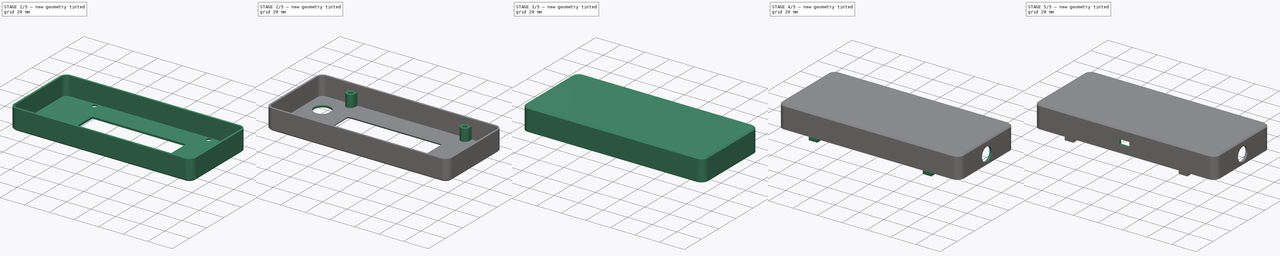
[diagram: build sequence overview — one tinted view per stage of 5, left to right]
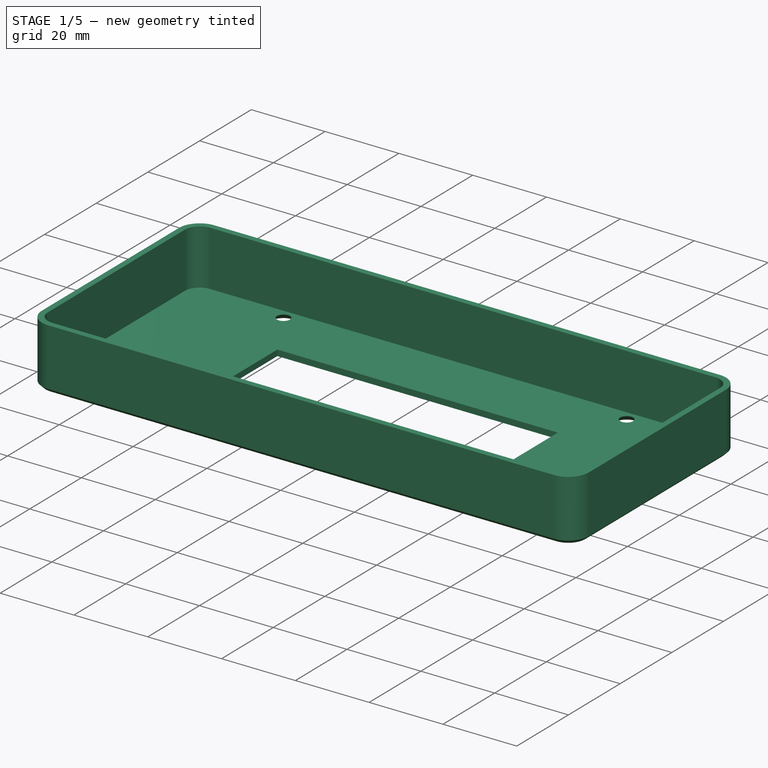
[diagram: stage 1 of 5 — iso view after this stage's code; geometry added in this stage tinted green]
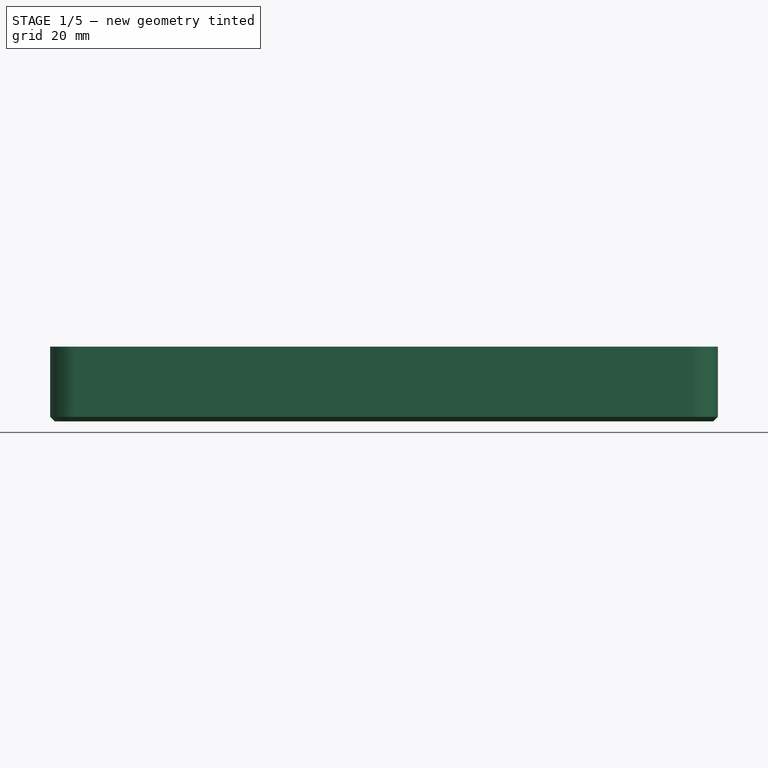
[diagram: stage 1 of 5 — front view after this stage's code; geometry added in this stage tinted green]
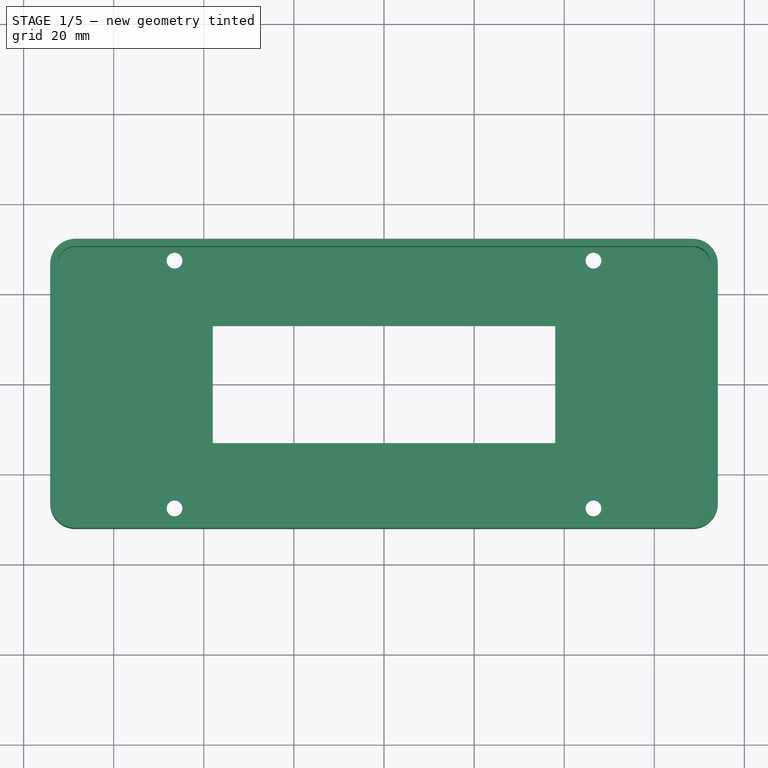
[diagram: stage 1 of 5 — top view after this stage's code; geometry added in this stage tinted green]
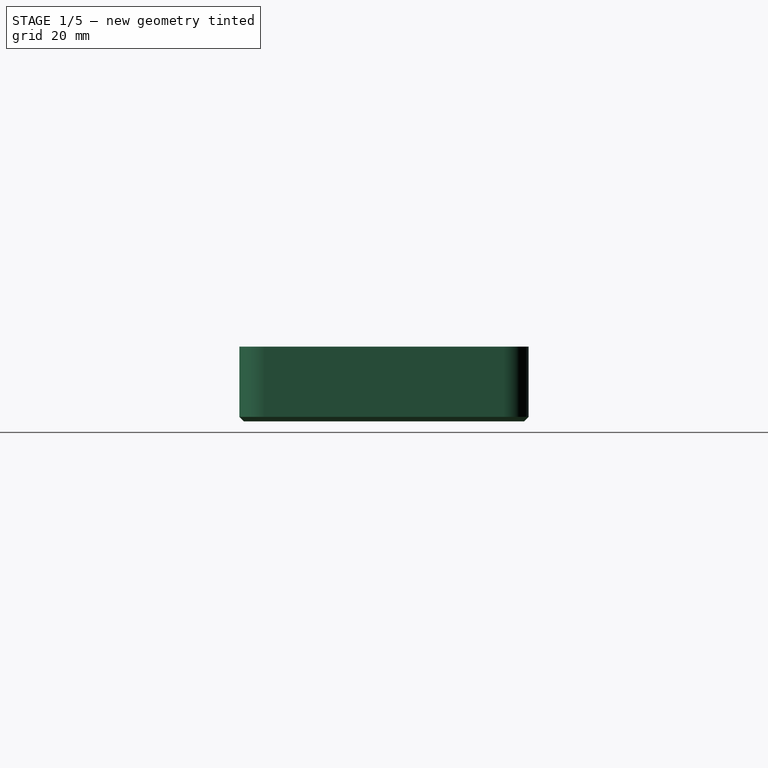
[diagram: stage 1 of 5 — right view after this stage's code; geometry added in this stage tinted green]
FCSTD DOCUMENT  (FreeCAD 1.0R39285 (Git))
Label: CW_keyer
License: All rights reserved
LicenseURL: https://en.wikipedia.org/wiki/All_rights_reserved
objects: Sketcher::SketchObject×16, PartDesign::Pocket×10, PartDesign::Pad×8, PartDesign::Chamfer×5, PartDesign::SubShapeBinder×3, PartDesign::Fillet×2, PartDesign::Thickness×2, PartDesign::Mirrored×2, Part::Part2DObjectPython×2, PartDesign::Body×2, PartDesign::Plane×1
note: 125 computed .brp shape members not serialized (recipe doc carries the construction recipe); baked Part::Feature solids carry a one-line shape summary decoded from their .brp

FEATURE [Sketcher::SketchObject] Sketch
  ArcFitTolerance = 1e-06
  AttachmentSupport = -> [XY_Plane]
  FullyConstrained = true
  MakeInternals = false
  MapMode = 5
  sketch-geometry (5):
    g0: LineSegment StartX=-72.5 StartY=-30.5 StartZ=0 EndX=72.5 EndY=-30.5 EndZ=0
    g1: LineSegment StartX=72.5 StartY=-30.5 StartZ=0 EndX=72.5 EndY=30.5 EndZ=0
    g2: LineSegment StartX=72.5 StartY=30.5 StartZ=0 EndX=-72.5 EndY=30.5 EndZ=0
    g3: LineSegment StartX=-72.5 StartY=30.5 StartZ=0 EndX=-72.5 EndY=-30.5 EndZ=0
    g4: GeomPoint [constr] X=0 Y=0 Z=0
  constraints (12):
    c: Coincident(g0,g1)
    c: Coincident(g1,g2)
    c: Coincident(g2,g3)
    c: Coincident(g3,g0)
    c: Horizontal(g0)
    c: Horizontal(g2)
    c: Vertical(g1)
    c: Vertical(g3)
    c: Symmetric(g2,g0,g4)
    c: Distance(g1,g3) = 145
    c: Distance(g0,g2) = 61
    c: Coincident(g4,g-1)
FEATURE [PartDesign::Pad] Pad
  Direction = (0,0,1)
  Length = 15
  Length2 = 10
  Profile = -> Sketch
  ReferenceAxis = -> Sketch [N_Axis]
  Refine = true
  Suppressed = false
  Type = 0
FEATURE [PartDesign::Fillet] Fillet
  Base = -> Pad [Edge2,Edge1,Edge5,Edge8]
  BaseFeature = -> Pad
  Radius = 4
  Refine = true
  SupportTransform = false
  Suppressed = false
  UseAllEdges = false
FEATURE [PartDesign::Thickness] Thickness
  Base = -> Fillet [Face5]
  BaseFeature = -> Fillet
  Intersection = true
  Join = 1
  Mode = 0
  Refine = true
  SupportTransform = false
  Suppressed = false
  Value = 1.6
FEATURE [PartDesign::Chamfer] Chamfer
  Angle = 45
  Base = -> Thickness [Edge37]
  BaseFeature = -> Thickness
  ChamferType = 0
  FlipDirection = false
  Refine = true
  Size = 1
  Size2 = 1
  SupportTransform = false
  Suppressed = false
  UseAllEdges = false
FEATURE [Sketcher::SketchObject] Sketch001
  ArcFitTolerance = 1e-06
  AttachmentSupport = -> [Chamfer]
  FullyConstrained = true
  MakeInternals = false
  MapMode = 5
  sketch-geometry (11):
    g0: LineSegment StartX=-38 StartY=-13 StartZ=0 EndX=38 EndY=-13 EndZ=0
    g1: LineSegment StartX=38 StartY=-13 StartZ=0 EndX=38 EndY=13 EndZ=0
    g2: LineSegment StartX=38 StartY=13 StartZ=0 EndX=-38 EndY=13 EndZ=0
    g3: LineSegment StartX=-38 StartY=13 StartZ=0 EndX=-38 EndY=-13 EndZ=0
    g4: GeomPoint [constr] X=0 Y=0 Z=0
    g5: Circle CenterX=-46.5 CenterY=27.5 CenterZ=0 NormalX=0 NormalY=0 NormalZ=1 AngleXU=0 Radius=1.75
    g6: Circle CenterX=46.5 CenterY=27.5 CenterZ=0 NormalX=0 NormalY=0 NormalZ=1 AngleXU=0 Radius=1.75
    g7: Circle CenterX=-46.5 CenterY=-27.5 CenterZ=0 NormalX=0 NormalY=0 NormalZ=1 AngleXU=0 Radius=1.75
    g8: Circle CenterX=46.5 CenterY=-27.5 CenterZ=0 NormalX=0 NormalY=0 NormalZ=1 AngleXU=0 Radius=1.75
    g9: LineSegment [constr] StartX=-46.5 StartY=27.5 StartZ=0 EndX=46.5 EndY=27.5 EndZ=0
    g10: LineSegment [constr] StartX=-46.5 StartY=27.5 StartZ=0 EndX=-46.5 EndY=-27.5 EndZ=0
  constraints (26):
    c: Coincident(g0,g1)
    c: Coincident(g1,g2)
    c: Coincident(g2,g3)
    c: Coincident(g3,g0)
    c: Horizontal(g0)
    c: Horizontal(g2)
    c: Vertical(g1)
    c: Vertical(g3)
    c: Symmetric(g2,g0,g4)
    c: Distance(g1,g3) = 76
    c: Distance(g0,g2) = 26
    c: Coincident(g4,g-1)
    c: Coincident(g9,g5)
    c: Coincident(g9,g6)
    c: Coincident(g10,g5)
    c: Coincident(g10,g7)
    c: Equal(g5,g6)
    c: Equal(g6,g7)
    c: Equal(g7,g8)
    c: Diameter(g6) = 3.5
    c: Symmetric(g5,g6,g-2)
    c: Symmetric(g5,g7,g-1)
    c: DistanceX(g9,g9) = 93
    c: DistanceY(g10,g10) = 55
    c: Horizontal(g8,g7)
    c: Vertical(g8,g6)
FEATURE [PartDesign::Pocket] Pocket
  BaseFeature = -> Chamfer
  Direction = (0,0,-1)
  Length = 5
  Length2 = 5
  Profile = -> Sketch001
  ReferenceAxis = -> Sketch001 [N_Axis]
  Refine = true
  Suppressed = false
  Type = 2
FEATURE [PartDesign::Chamfer] Chamfer001
  Angle = 45
  Base = -> Pocket [Edge39,Edge44,Edge38,Edge37]
  BaseFeature = -> Pocket
  ChamferType = 0
  FlipDirection = false
  Refine = true
  Size = 1.5
  Size2 = 1
  SupportTransform = false
  Suppressed = false
  UseAllEdges = false
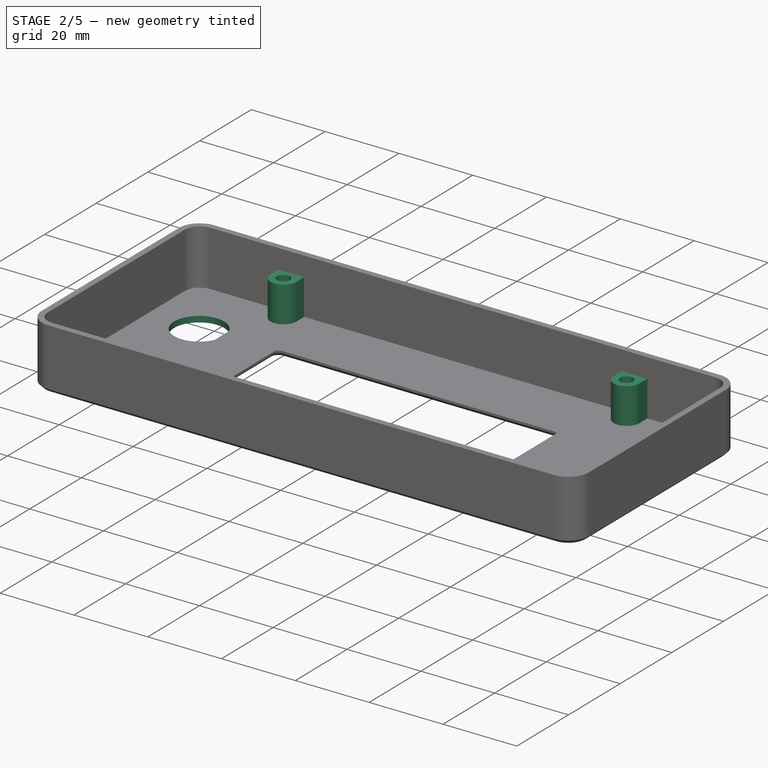
[diagram: stage 2 of 5 — iso view after this stage's code; geometry added in this stage tinted green]
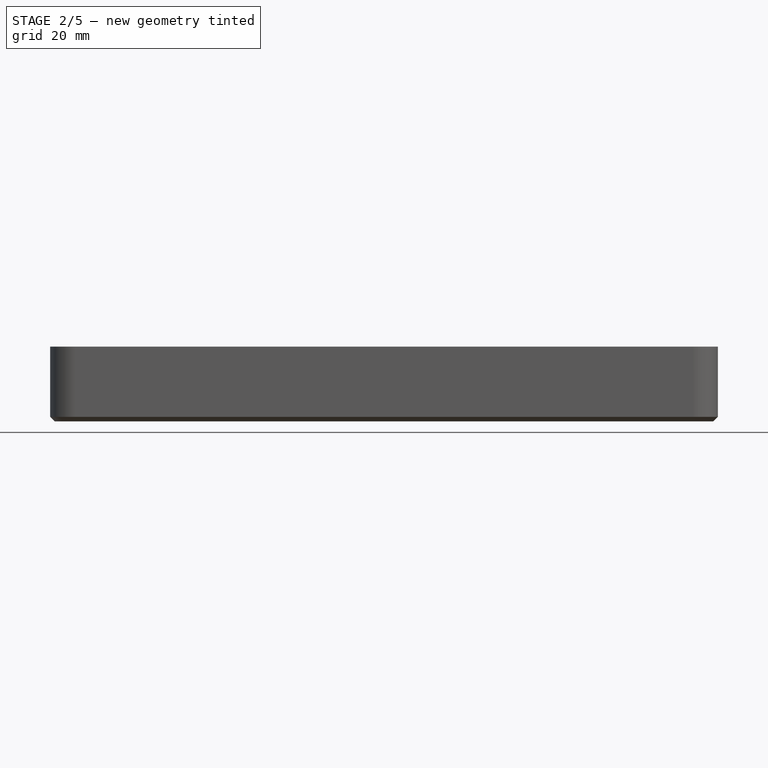
[diagram: stage 2 of 5 — front view after this stage's code; geometry added in this stage tinted green]
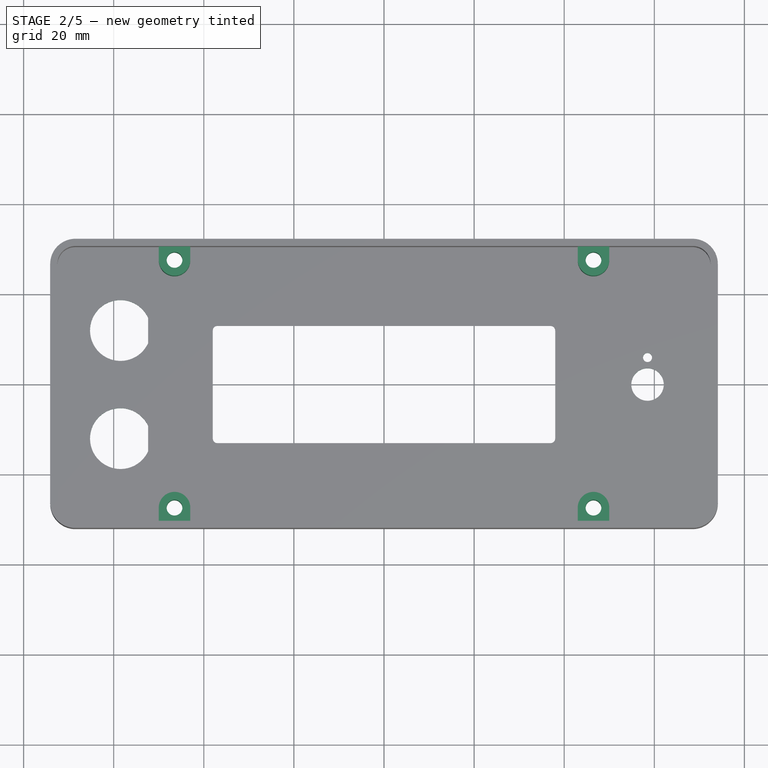
[diagram: stage 2 of 5 — top view after this stage's code; geometry added in this stage tinted green]
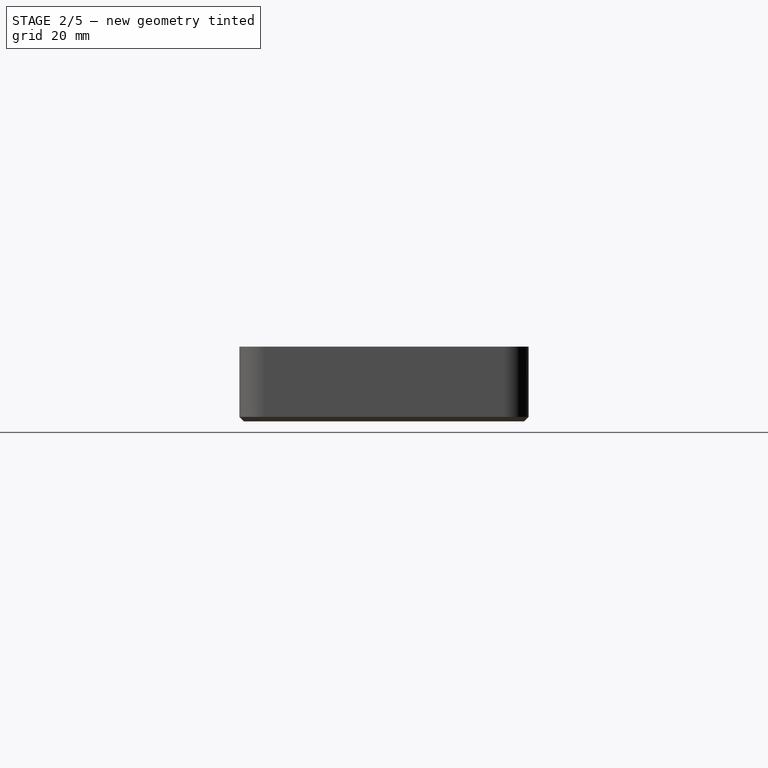
[diagram: stage 2 of 5 — right view after this stage's code; geometry added in this stage tinted green]
FEATURE [PartDesign::Fillet] Fillet001
  Base = -> Chamfer001 [Edge39,Edge41,Edge37,Edge36]
  BaseFeature = -> Chamfer001
  Radius = 1
  Refine = true
  SupportTransform = false
  Suppressed = false
  UseAllEdges = false
FEATURE [PartDesign::Chamfer] Chamfer002
  Angle = 45
  Base = -> Fillet001 [Edge6]
  BaseFeature = -> Fillet001
  ChamferType = 0
  FlipDirection = false
  Refine = true
  Size = 1
  Size2 = 1
  SupportTransform = false
  Suppressed = false
  UseAllEdges = false
FEATURE [Sketcher::SketchObject] Sketch002
  ArcFitTolerance = 1e-06
  AttachmentSupport = -> [Chamfer002]
  ExternalGeometry = -> [Chamfer002]
  FullyConstrained = true
  MakeInternals = false
  MapMode = 5
  sketch-geometry (20):
    g0: Circle CenterX=-46.5 CenterY=27.5 CenterZ=0 NormalX=0 NormalY=0 NormalZ=1 AngleXU=0 Radius=1.75
    g1: Circle CenterX=46.5 CenterY=27.5 CenterZ=0 NormalX=0 NormalY=0 NormalZ=1 AngleXU=0 Radius=1.75
    g2: Circle CenterX=46.5 CenterY=-27.5 CenterZ=0 NormalX=0 NormalY=0 NormalZ=1 AngleXU=0 Radius=1.75
    g3: Circle CenterX=-46.5 CenterY=-27.5 CenterZ=0 NormalX=0 NormalY=0 NormalZ=1 AngleXU=0 Radius=1.75
    g4: ArcOfCircle CenterX=-46.5 CenterY=27.5 CenterZ=0 NormalX=0 NormalY=0 NormalZ=1 AngleXU=0 Radius=3.5 StartAngle=3.14159 EndAngle=6.28319
    g5: ArcOfCircle CenterX=46.5 CenterY=27.5 CenterZ=0 NormalX=0 NormalY=0 NormalZ=1 AngleXU=0 Radius=3.5 StartAngle=3.14159 EndAngle=6.28319
    g6: ArcOfCircle CenterX=46.5 CenterY=-27.5 CenterZ=0 NormalX=0 NormalY=0 NormalZ=1 AngleXU=0 Radius=3.5 StartAngle=0 EndAngle=3.14159
    g7: ArcOfCircle CenterX=-46.5 CenterY=-27.5 CenterZ=0 NormalX=0 NormalY=0 NormalZ=1 AngleXU=0 Radius=3.5 StartAngle=0 EndAngle=3.14159
    g8: LineSegment StartX=-43 StartY=31 StartZ=0 EndX=-43 EndY=27.5 EndZ=0
    g9: LineSegment StartX=-50 StartY=31 StartZ=0 EndX=-50 EndY=27.5 EndZ=0
    g10: LineSegment StartX=-50 StartY=31 StartZ=0 EndX=-43 EndY=31 EndZ=0
    g11: LineSegment StartX=-50 StartY=-27.5 StartZ=0 EndX=-50 EndY=-31 EndZ=0
    g12: LineSegment StartX=-50 StartY=-31 StartZ=0 EndX=-43 EndY=-31 EndZ=0
    g13: LineSegment StartX=-43 StartY=-31 StartZ=0 EndX=-43 EndY=-27.5 EndZ=0
    g14: LineSegment StartX=43 StartY=-27.5 StartZ=0 EndX=43 EndY=-31 EndZ=0
    g15: LineSegment StartX=43 StartY=-31 StartZ=0 EndX=50 EndY=-31 EndZ=0
    g16: LineSegment StartX=50 StartY=-31 StartZ=0 EndX=50 EndY=-27.5 EndZ=0
    g17: LineSegment StartX=43 StartY=27.5 StartZ=0 EndX=43 EndY=31 EndZ=0
    g18: LineSegment StartX=43 StartY=31 StartZ=0 EndX=50 EndY=31 EndZ=0
    g19: LineSegment StartX=50 StartY=31 StartZ=0 EndX=50 EndY=27.5 EndZ=0
  constraints (48):
    c: Coincident(g0,g-3)
    c: Equal(g0,g-3)
    c: Coincident(g1,g-5)
    c: Equal(g1,g-5)
    c: Coincident(g2,g-6)
    c: Equal(g2,g-6)
    c: Coincident(g3,g-4)
    c: Equal(g3,g-4)
    c: Diameter(g4) = 7
    c: Coincident(g4,g0)
    c: Coincident(g5,g1)
    c: Coincident(g6,g2)
    c: Coincident(g7,g3)
    c: Equal(g4,g5)
    c: Equal(g5,g6)
    c: Equal(g6,g7)
    c: Vertical(g9)
    c: Coincident(g10,g9)
    c: Coincident(g10,g8)
    c: Horizontal(g10)
    c: Vertical(g8)
    c: Coincident(g11,g12)
    c: Coincident(g12,g13)
    c: Coincident(g14,g15)
    c: Coincident(g15,g16)
    c: Horizontal(g15)
    c: Vertical(g14)
    c: Vertical(g16)
    c: Vertical(g11)
    c: Horizontal(g12)
    c: Vertical(g13)
    c: Coincident(g17,g18)
    c: Coincident(g18,g19)
    c: Vertical(g17)
    c: Horizontal(g18)
    c: Vertical(g19)
    c: Tangent(g4,g8) = 1.5708
    c: Tangent(g4,g9) = -1.5708
    c: Tangent(g5,g19) = 1.5708
    c: Tangent(g5,g17) = 1.5708
    c: Tangent(g6,g16) = -1.5708
    c: Tangent(g6,g14) = -1.5708
    c: Tangent(g7,g11) = -1.5708
    c: Tangent(g7,g13) = -1.5708
    c: DistanceY(g9,g9) = 3.5
    c: Equal(g13,g14)
    c: Equal(g14,g17)
    c: Equal(g17,g9)
FEATURE [PartDesign::Pad] Pad001
  BaseFeature = -> Chamfer002
  Direction = (0,0,1)
  Length = 9.7
  Length2 = 10
  Profile = -> Sketch002
  ReferenceAxis = -> Sketch002 [N_Axis]
  Refine = true
  Suppressed = false
  Type = 0
FEATURE [Sketcher::SketchObject] Sketch007
  ArcFitTolerance = 1e-06
  AttachmentSupport = -> [Pad001]
  ExternalGeometry = -> [Pad001]
  FullyConstrained = true
  MakeInternals = false
  MapMode = 5
  Placement = pos=(0,0,-1.6) rot=(1,0,0;3.14159rad)
  sketch-geometry (15):
    g0: LineSegment [constr] StartX=46.5 StartY=27.5 StartZ=0 EndX=46.5 EndY=-27.5 EndZ=0
    g1: LineSegment [constr] StartX=-46.5 StartY=27.5 StartZ=0 EndX=-46.5 EndY=-27.5 EndZ=0
    g2: Circle CenterX=58.5 CenterY=0 CenterZ=0 NormalX=0 NormalY=0 NormalZ=1 AngleXU=0 Radius=3.6
    g3: ArcOfCircle CenterX=-58.5 CenterY=12 CenterZ=0 NormalX=0 NormalY=0 NormalZ=1 AngleXU=0 Radius=6.75 StartAngle=0.424824 EndAngle=5.85836
    g4: ArcOfCircle CenterX=-58.5 CenterY=-12 CenterZ=0 NormalX=0 NormalY=0 NormalZ=1 AngleXU=0 Radius=6.75 StartAngle=0.424824 EndAngle=5.85836
    g5: Circle CenterX=58.5 CenterY=-6 CenterZ=0 NormalX=0 NormalY=0 NormalZ=1 AngleXU=0 Radius=1
    g6: LineSegment [constr] StartX=-49.5 StartY=-30 StartZ=0 EndX=49.5 EndY=-30 EndZ=0
    g7: LineSegment [constr] StartX=49.5 StartY=-30 StartZ=0 EndX=49.5 EndY=30 EndZ=0
    g8: LineSegment [constr] StartX=49.5 StartY=30 StartZ=0 EndX=-49.5 EndY=30 EndZ=0
    g9: LineSegment [constr] StartX=-49.5 StartY=30 StartZ=0 EndX=-49.5 EndY=-30 EndZ=0
    g10: GeomPoint [constr] X=0 Y=0 Z=0
    g11: LineSegment StartX=-52.35 StartY=14.7821 StartZ=0 EndX=-52.35 EndY=9.21791 EndZ=0
    g12: LineSegment StartX=-52.35 StartY=-9.21791 StartZ=0 EndX=-52.35 EndY=-14.7821 EndZ=0
    g13: GeomPoint [constr] X=-52.35 Y=12 Z=0
    g14: GeomPoint [constr] X=-65.25 Y=12 Z=0
  constraints (38):
    c: Coincident(g0,g-3)
    c: Coincident(g0,g-4)
    c: Coincident(g1,g-5)
    c: Coincident(g1,g-6)
    c: PointOnObject(g2,g-1)
    c: Symmetric(g3,g4,g-1)
    c: Distance(g3,g1) = 12
    c: Equal(g3,g4)
    c: Diameter(g3) = 13.5
    c: Distance(g3,g-1) = 12
    c: Diameter(g2) = 7.2
    c: Distance(g2,g0) = 12
    c: Vertical(g5,g2)
    c: DistanceY(g5,g2) = 6
    c: Diameter(g5) = 2
    c: Coincident(g6,g7)
    c: Coincident(g7,g8)
    c: Coincident(g8,g9)
    c: Coincident(g9,g6)
    c: Horizontal(g6)
    c: Horizontal(g8)
    c: Vertical(g7)
    c: Vertical(g9)
    c: Symmetric(g8,g6,g10)
    c: Coincident(g10,g-1)
    c: DistanceX(g8,g8) = 99
    c: DistanceY(g7,g7) = 60
    c: Vertical(g11)
    c: Coincident(g4,g12)
    c: Coincident(g4,g12)
    c: Coincident(g3,g11)
    c: Coincident(g3,g11)
    c: Symmetric(g11,g11,g13)
    c: PointOnObject(g14,g3)
    c: Horizontal(g13,g14)
    c: DistanceX(g14,g13) = 12.9
    c: Equal(g11,g12)
    c: Vertical(g12)
FEATURE [PartDesign::Pocket] Pocket003  label="ovladani"
  BaseFeature = -> Pad001
  Direction = (0,0,1)
  Length = 5
  Length2 = 5
  Profile = -> Sketch007
  ReferenceAxis = -> Sketch007 [N_Axis]
  Refine = true
  Suppressed = false
  Type = 0
FEATURE [Sketcher::SketchObject] Sketch011
  ArcFitTolerance = 1e-06
  AttachmentSupport = -> [Pocket003]
  ExternalGeometry = -> [Pocket003]
  FullyConstrained = true
  MakeInternals = false
  MapMode = 5
  Placement = pos=(0,0,-1.6) rot=(1,0,0;3.14159rad)
  sketch-geometry (25):
    g0: LineSegment StartX=-46.1906 StartY=-6 StartZ=0 EndX=-49.6547 EndY=-4 EndZ=0
    g1: LineSegment StartX=-49.6547 StartY=-4 StartZ=0 EndX=-49.6547 EndY=-8 EndZ=0
    g2: LineSegment StartX=-49.6547 StartY=-8 StartZ=0 EndX=-46.1906 EndY=-6 EndZ=0
    g3: Circle [constr] CenterX=-48.5 CenterY=-6 CenterZ=0 NormalX=0 NormalY=0 NormalZ=1 AngleXU=0 Radius=2.3094
    g4: LineSegment StartX=-44.1906 StartY=-10 StartZ=0 EndX=-44.1906 EndY=-14 EndZ=0
    g5: LineSegment StartX=-44.1906 StartY=-14 StartZ=0 EndX=-40.1906 EndY=-14 EndZ=0
    g6: LineSegment StartX=-40.1906 StartY=-14 StartZ=0 EndX=-40.1906 EndY=-10 EndZ=0
    g7: LineSegment StartX=-40.1906 StartY=-10 StartZ=0 EndX=-44.1906 EndY=-10 EndZ=0
    g8: LineSegment [constr] StartX=-58.5 StartY=12 StartZ=0 EndX=-44.2373 EndY=12 EndZ=0
    g9: LineSegment StartX=-48.6213 StartY=14.1213 StartZ=0 EndX=-46.5 EndY=12 EndZ=0
    g10: LineSegment StartX=-46.5 StartY=12 StartZ=0 EndX=-48.6213 EndY=9.87868 EndZ=0
    g11: LineSegment StartX=-48.6213 StartY=9.87868 StartZ=0 EndX=-47.4899 EndY=8.74731 EndZ=0
    g12: LineSegment StartX=-47.4899 StartY=8.74731 StartZ=0 EndX=-45.3686 EndY=10.8686 EndZ=0
    g13: LineSegment StartX=-45.3686 StartY=10.8686 StartZ=0 EndX=-43.2473 EndY=8.74731 EndZ=0
    g14: LineSegment StartX=-43.2473 StartY=8.74731 StartZ=0 EndX=-42.1159 EndY=9.87868 EndZ=0
    g15: LineSegment StartX=-42.1159 StartY=9.87868 StartZ=0 EndX=-44.2373 EndY=12 EndZ=0
    g16: LineSegment StartX=-44.2373 StartY=12 StartZ=0 EndX=-42.1159 EndY=14.1213 EndZ=0
    g17: LineSegment StartX=-42.1159 StartY=14.1213 StartZ=0 EndX=-43.2473 EndY=15.2527 EndZ=0
    g18: LineSegment StartX=-43.2473 StartY=15.2527 StartZ=0 EndX=-45.3686 EndY=13.1314 EndZ=0
    g19: LineSegment StartX=-45.3686 StartY=13.1314 StartZ=0 EndX=-47.4899 EndY=15.2527 EndZ=0
    g20: LineSegment StartX=-47.4899 StartY=15.2527 StartZ=0 EndX=-48.6213 EndY=14.1213 EndZ=0
    g21: LineSegment StartX=-44.1906 StartY=-5 StartZ=0 EndX=-49.9264 EndY=-13.1915 EndZ=0
    g22: LineSegment StartX=-49.9264 StartY=-13.1915 StartZ=0 EndX=-49.1072 EndY=-13.7651 EndZ=0
    g23: LineSegment StartX=-49.1072 StartY=-13.7651 StartZ=0 EndX=-43.3714 EndY=-5.57358 EndZ=0
    g24: LineSegment StartX=-43.3714 StartY=-5.57358 StartZ=0 EndX=-44.1906 EndY=-5 EndZ=0
  constraints (74):
    c: Coincident(g0,g1)
    c: Coincident(g1,g2)
    c: Coincident(g2,g0)
    c: Equal(g0,g1)
    c: Equal(g0,g2)
    c: PointOnObject(g0,g3)
    c: PointOnObject(g1,g3)
    c: PointOnObject(g2,g3)
    c: Coincident(g4,g5)
    c: Coincident(g5,g6)
    c: Coincident(g6,g7)
    c: Coincident(g7,g4)
    c: Vertical(g4)
    c: Vertical(g6)
    c: Horizontal(g5)
    c: Horizontal(g7)
    c: Vertical(g1)
    c: DistanceY(g1,g1) = 4
    c: DistanceX(g7,g7) = 4
    c: Equal(g7,g6)
    c: Coincident(g8,g-4)
    c: Horizontal(g8)
    c: Coincident(g9,g10)
    c: Coincident(g10,g11)
    c: Coincident(g11,g12)
    c: Coincident(g12,g13)
    c: Coincident(g13,g14)
    c: Coincident(g14,g15)
    c: Coincident(g15,g16)
    c: Coincident(g16,g17)
    c: Coincident(g17,g18)
    c: Coincident(g18,g19)
    c: Coincident(g19,g20)
    c: Coincident(g20,g9)
    c: Equal(g20,g14)
    c: Equal(g14,g17)
    c: Equal(g17,g11)
    c: Equal(g19,g9)
    c: Equal(g9,g18)
    c: Equal(g18,g16)
    c: Equal(g16,g15)
    c: Equal(g15,g13)
    c: Equal(g13,g12)
    c: Equal(g12,g10)
    c: Perpendicular(g10,g9)
    c: Perpendicular(g18,g19)
    c: Perpendicular(g15,g16)
    c: Perpendicular(g12,g13)
    c: Perpendicular(g9,g20)
    c: Perpendicular(g16,g17)
    c: Perpendicular(g14,g15,g14) = 1.5708
    c: Perpendicular(g11,g12)
    c: Perpendicular(g17,g18)
    c: PointOnObject(g9,g8)
    c: Distance(g20,g20) = 1.6
    c: Distance(g19,g19) = 3
    c: DistanceX(g8,g9) = 12
    c: Coincident(g8,g15)
    c: Coincident(g21,g22)
    c: Coincident(g22,g23)
    c: Coincident(g23,g24)
    c: Coincident(g24,g21)
    c: Parallel(g23,g21)
    c: Parallel(g24,g22)
    c: Perpendicular(g23,g22)
    c: Distance(g22,g22) = 1
    c: Distance(g23,g23) = 10
    c: DistanceX(g-3,g3) = 10
    c: DistanceY(g-3,g3) = 6
    c: DistanceX(g0,g21) = 2
    c: DistanceY(g4,g0) = 4
    c: DistanceX(g0,g4) = 2
    c: DistanceY(g4,g21) = 5
    c: Angle(g5,g23) = 0.959931
FEATURE [PartDesign::Pocket] Pocket006
  BaseFeature = -> Pocket003
  Direction = (0,0,1)
  Length = 0.6
  Length2 = 5
  Profile = -> Sketch011
  ReferenceAxis = -> Sketch011 [N_Axis]
  Refine = true
  Suppressed = false
  Type = 0
FEATURE [Part::Part2DObjectPython] ShapeString  # Draft 2D object (typed FeaturePython)
  AttachmentOffset = pos=(45,11,0) rot=(0,0,1;0rad)
  AttachmentSupport = -> [Pocket006]
  FontFile = <path>
  Fuse = false
  Justification = 6
  JustificationReference = 0
  KeepLeftMargin = false
  MakeFace = true
  MapMode = 5
  ObliqueAngle = 0
  Placement = pos=(45,-11,-1.6) rot=(1,0,0;3.14159rad)
  ScaleToSize = true
  Size = 6
  String = WPM
  Tracking = 0
FEATURE [PartDesign::Pocket] Pocket007
  BaseFeature = -> Pocket006
  Direction = (0,0,1)
  Length = 0.6
  Length2 = 5
  Profile = -> ShapeString
  ReferenceAxis = -> ShapeString [N_Axis]
  Refine = true
  Suppressed = false
  Type = 0
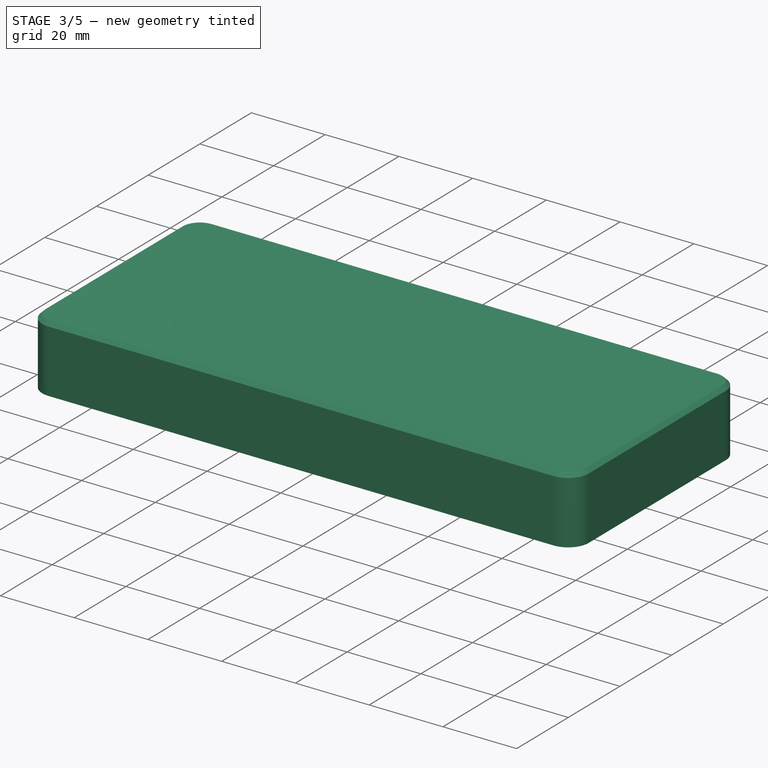
[diagram: stage 3 of 5 — iso view after this stage's code; geometry added in this stage tinted green]
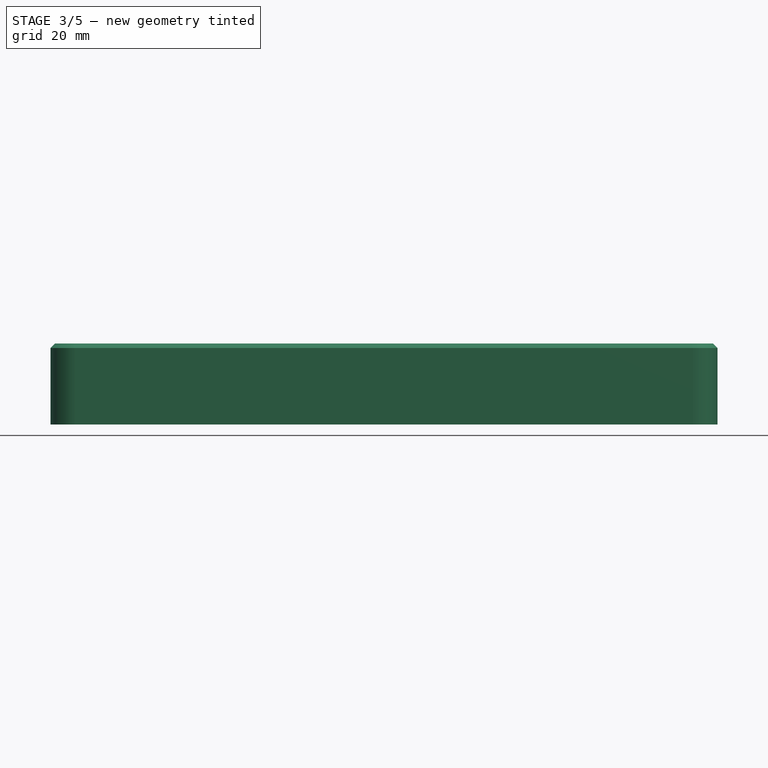
[diagram: stage 3 of 5 — front view after this stage's code; geometry added in this stage tinted green]
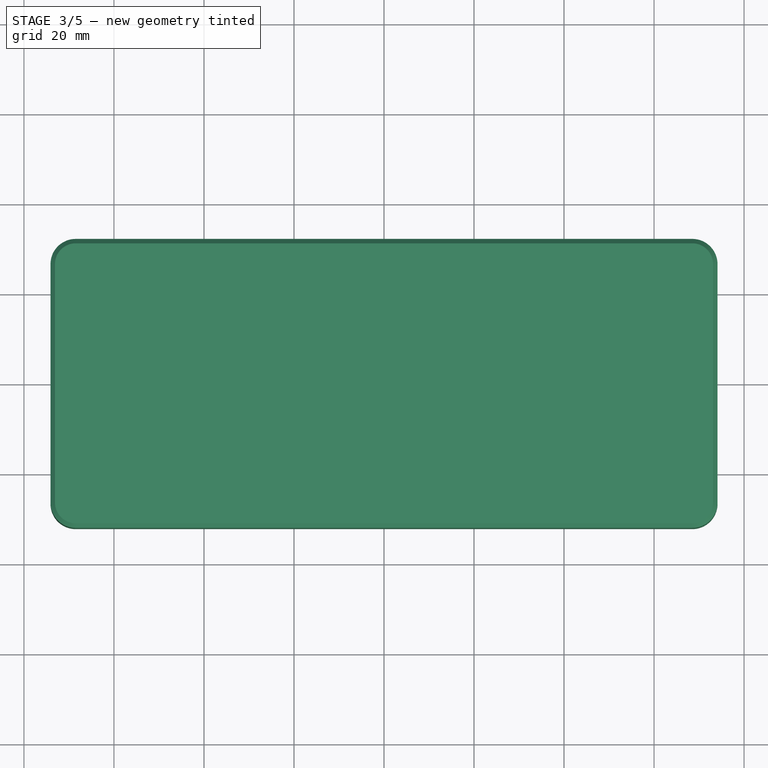
[diagram: stage 3 of 5 — top view after this stage's code; geometry added in this stage tinted green]
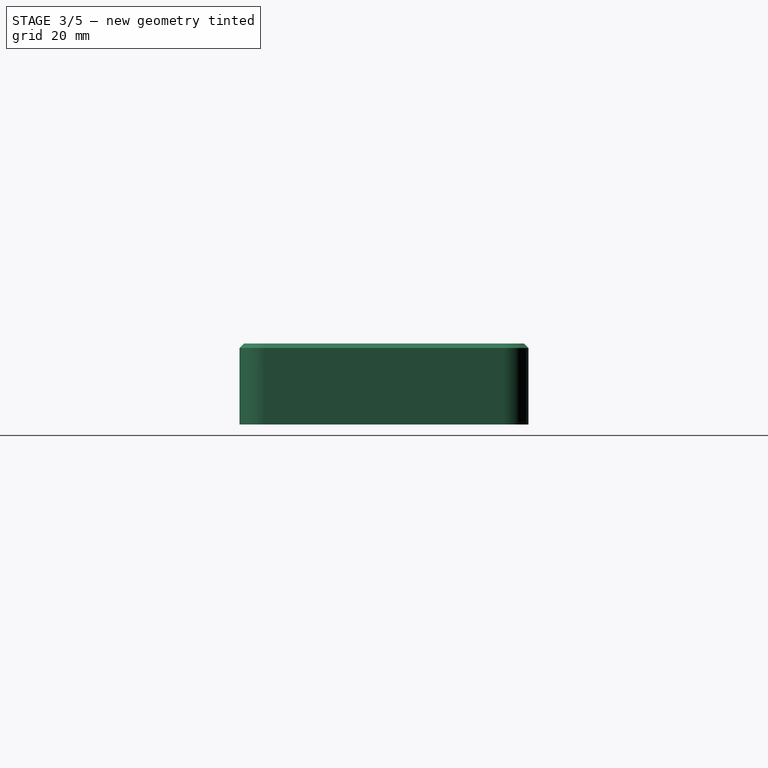
[diagram: stage 3 of 5 — right view after this stage's code; geometry added in this stage tinted green]
FEATURE [PartDesign::SubShapeBinder] Binder001
  BindCopyOnChange = 0
  BindMode = 0
  ClaimChildren = false
  Context = -> Body001 [Binder001.]
  Fuse = false
  MakeFace = true
  OffsetFill = false
  OffsetIntersection = false
  OffsetJoinType = 0
  OffsetOpenResult = false
  PartialLoad = false
  Placement = pos=(0,0,1.7) rot=(0,0,1;0rad)
  Refine = true
  Relative = true
  Support = -> [Body[Pad001.Edge166,Pad001.Vertex105,Pad001.Edge165,Pad001.Edge168,Pad001.Edge139,Pad001.Edge163,Pad001.Edge144,Pad001.Edge158]]
  _Version = 2
FEATURE [PartDesign::SubShapeBinder] Binder
  BindCopyOnChange = 0
  BindMode = 0
  ClaimChildren = false
  Context = -> Body001 [Binder.]
  Fuse = false
  MakeFace = true
  Offset = -0.2
  OffsetFill = false
  OffsetIntersection = false
  OffsetJoinType = 0
  OffsetOpenResult = false
  PartialLoad = false
  Refine = true
  Relative = true
  Support = -> [Body[Pad001.Edge120,Pad001.Edge124,Pad001.Edge122,Pad001.Edge118,Pad001.Edge119,Pad001.Edge121,Pad001.Edge123,Pad001.Edge117]]
  _Version = 2
FEATURE [PartDesign::SubShapeBinder] Binder002
  BindCopyOnChange = 0
  BindMode = 0
  ClaimChildren = false
  Context = -> Body001 [Binder002.]
  Fuse = false
  MakeFace = true
  OffsetFill = false
  OffsetIntersection = false
  OffsetJoinType = 0
  OffsetOpenResult = false
  PartialLoad = false
  Refine = true
  Relative = true
  Support = -> [Body[Pad001.Face39]]
  _Version = 2
FEATURE [Sketcher::SketchObject] Sketch003
  ArcFitTolerance = 1e-06
  AttachmentSupport = -> [Binder002]
  ExternalGeometry = -> [Binder002]
  FullyConstrained = true
  MakeInternals = false
  MapMode = 5
  Placement = pos=(0,0,15) rot=(0,0,1;0rad)
  sketch-geometry (12):
    g0: GeomPoint [constr] X=-68.5 Y=26.5 Z=0
    g1: GeomPoint [constr] X=68.5 Y=-26.5 Z=0
    g2: LineSegment StartX=-74.1 StartY=26.5 StartZ=0 EndX=-74.1 EndY=-26.5 EndZ=0
    g3: LineSegment StartX=-68.5 StartY=-32.1 StartZ=0 EndX=68.5 EndY=-32.1 EndZ=0
    g4: LineSegment StartX=74.1 StartY=-26.5 StartZ=0 EndX=74.1 EndY=26.5 EndZ=0
    g5: LineSegment StartX=68.5 StartY=32.1 StartZ=0 EndX=-68.5 EndY=32.1 EndZ=0
    g6: ArcOfCircle CenterX=-68.5 CenterY=26.5 CenterZ=0 NormalX=0 NormalY=0 NormalZ=1 AngleXU=0 Radius=5.6 StartAngle=1.5708 EndAngle=3.14159
    g7: ArcOfCircle CenterX=-68.5 CenterY=-26.5 CenterZ=0 NormalX=0 NormalY=0 NormalZ=1 AngleXU=0 Radius=5.6 StartAngle=3.14159 EndAngle=4.71239
    g8: ArcOfCircle CenterX=68.5 CenterY=-26.5 CenterZ=0 NormalX=0 NormalY=0 NormalZ=1 AngleXU=0 Radius=5.6 StartAngle=4.71239 EndAngle=6.28319
    g9: ArcOfCircle CenterX=68.5 CenterY=26.5 CenterZ=0 NormalX=0 NormalY=0 NormalZ=1 AngleXU=0 Radius=5.6 StartAngle=0 EndAngle=1.5708
    g10: GeomPoint [constr] X=-74.1 Y=32.1 Z=0
    g11: GeomPoint [constr] X=74.1 Y=-32.1 Z=0
  constraints (24):
    c: Coincident(g0,g-3)
    c: Coincident(g1,g-4)
    c: Tangent(g2,g6) = -1.5708
    c: Tangent(g2,g7) = -1.5708
    c: Tangent(g3,g7) = -1.5708
    c: Tangent(g3,g8) = -1.5708
    c: Tangent(g4,g8) = -1.5708
    c: Tangent(g4,g9) = -1.5708
    c: Tangent(g5,g9) = -1.5708
    c: Tangent(g5,g6) = -1.5708
    c: Vertical(g2)
    c: Vertical(g4)
    c: Horizontal(g3)
    c: Horizontal(g5)
    c: Equal(g6,g7)
    c: Equal(g7,g8)
    c: Equal(g8,g9)
    c: PointOnObject(g10,g2)
    c: PointOnObject(g10,g5)
    c: PointOnObject(g11,g3)
    c: PointOnObject(g11,g4)
    c: Coincident(g6,g0)
    c: Coincident(g1,g8)
    c: Equal(g6,g-3)
FEATURE [PartDesign::Pad] Pad002
  Direction = (0,0,1)
  Length = 18
  Length2 = 10
  Profile = -> Sketch003
  ReferenceAxis = -> Sketch003 [N_Axis]
  Refine = true
  Suppressed = false
  Type = 0
FEATURE [PartDesign::Chamfer] Chamfer003
  Angle = 45
  Base = -> Pad002 [Edge10]
  BaseFeature = -> Pad002
  ChamferType = 0
  FlipDirection = false
  Refine = true
  Size = 1
  Size2 = 1
  SupportTransform = false
  Suppressed = false
  UseAllEdges = false
FEATURE [PartDesign::Thickness] Thickness001
  Base = -> Chamfer003 [Face4]
  BaseFeature = -> Chamfer003
  Intersection = true
  Join = 0
  Mode = 0
  Refine = true
  Reversed = true
  SupportTransform = false
  Suppressed = false
  Value = 1.8
FEATURE [Part::Part2DObjectPython] ShapeString001  # Draft 2D object (typed FeaturePython)
  AttachmentOffset = pos=(43,-20,0) rot=(0,0,1;0rad)
  AttachmentSupport = -> [Pocket007]
  FontFile = <path>
  Fuse = false
  Justification = 6
  JustificationReference = 0
  KeepLeftMargin = false
  MakeFace = true
  MapMode = 5
  ObliqueAngle = 0
  Placement = pos=(43,20,-1.6) rot=(1,0,0;3.14159rad)
  ScaleToSize = true
  Size = 6
  String = MODE
  Tracking = 0
FEATURE [PartDesign::Pocket] Pocket008
  BaseFeature = -> Pocket007
  Direction = (0,0,1)
  Length = 0.6
  Length2 = 5
  Profile = -> ShapeString001
  ReferenceAxis = -> ShapeString001 [N_Axis]
  Refine = true
  Suppressed = false
  Type = 0
FEATURE [Sketcher::SketchObject] Sketch012
  ArcFitTolerance = 1e-06
  AttachmentSupport = -> [Pocket008]
  FullyConstrained = true
  MakeInternals = false
  MapMode = 5
  sketch-geometry (12):
    g0: LineSegment StartX=50.25 StartY=-6.25 StartZ=0 EndX=62.75 EndY=-6.25 EndZ=0
    g1: LineSegment StartX=62.75 StartY=-6.25 StartZ=0 EndX=62.75 EndY=6.25 EndZ=0
    g2: LineSegment StartX=50.25 StartY=6.25 StartZ=0 EndX=50.25 EndY=-6.25 EndZ=0
    g3: GeomPoint [constr] X=56.5 Y=0 Z=0
    g4: LineSegment StartX=49 StartY=-7.5 StartZ=0 EndX=64 EndY=-7.5 EndZ=0
    g5: LineSegment StartX=64 StartY=-7.5 StartZ=0 EndX=64 EndY=7.5 EndZ=0
    g6: LineSegment StartX=49 StartY=7.5 StartZ=0 EndX=49 EndY=-7.5 EndZ=0
    g7: GeomPoint [constr] X=56.5 Y=0 Z=0
    g8: LineSegment StartX=49 StartY=7.5 StartZ=0 EndX=50.25 EndY=7.5 EndZ=0
    g9: LineSegment StartX=50.25 StartY=7.5 StartZ=0 EndX=50.25 EndY=6.25 EndZ=0
    g10: LineSegment StartX=62.75 StartY=6.25 StartZ=0 EndX=62.75 EndY=7.5 EndZ=0
    g11: LineSegment StartX=62.75 StartY=7.5 StartZ=0 EndX=64 EndY=7.5 EndZ=0
  constraints (30):
    c: Coincident(g0,g1)
    c: Coincident(g2,g0)
    c: Horizontal(g0)
    c: Vertical(g1)
    c: Vertical(g2)
    c: Symmetric(g1,g0,g3)
    c: Coincident(g3,g-3)
    c: Coincident(g4,g5)
    c: Coincident(g6,g4)
    c: Horizontal(g4)
    c: Vertical(g5)
    c: Vertical(g6)
    c: Symmetric(g5,g4,g7)
    c: Coincident(g7,g3)
    c: DistanceX(g2,g1) = 12.5
    c: DistanceX(g6,g5) = 15
    c: Coincident(g6,g8)
    c: Horizontal(g8)
    c: Coincident(g8,g9)
    c: Coincident(g9,g2)
    c: Equal(g6,g5)
    c: Equal(g5,g4)
    c: Equal(g1,g2)
    c: Equal(g2,g0)
    c: Vertical(g9)
    c: Coincident(g1,g10)
    c: Coincident(g10,g11)
    c: Coincident(g11,g5)
    c: Horizontal(g11)
    c: Vertical(g10)
FEATURE [PartDesign::Pad] Pad005
  BaseFeature = -> Pocket008
  Direction = (0,0,1)
  Length = 2.5
  Length2 = 10
  Profile = -> Sketch012
  ReferenceAxis = -> Sketch012 [N_Axis]
  Suppressed = false
  Type = 0
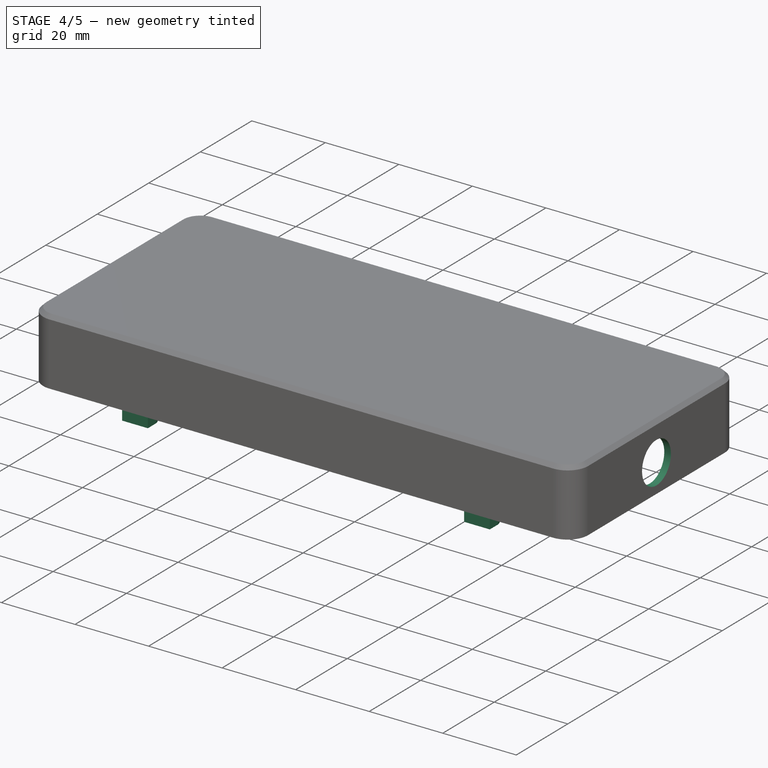
[diagram: stage 4 of 5 — iso view after this stage's code; geometry added in this stage tinted green]
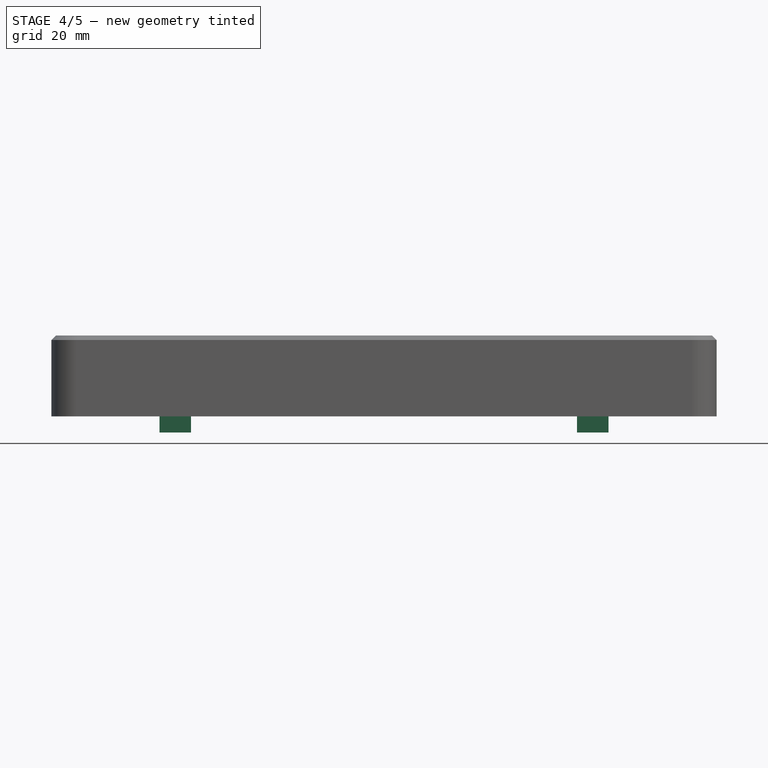
[diagram: stage 4 of 5 — front view after this stage's code; geometry added in this stage tinted green]
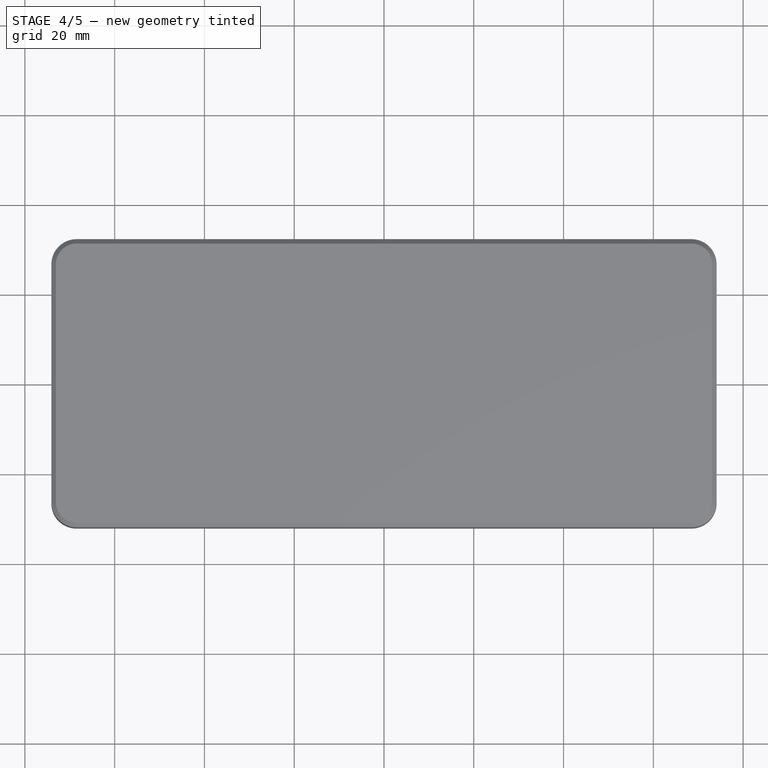
[diagram: stage 4 of 5 — top view after this stage's code; geometry added in this stage tinted green]
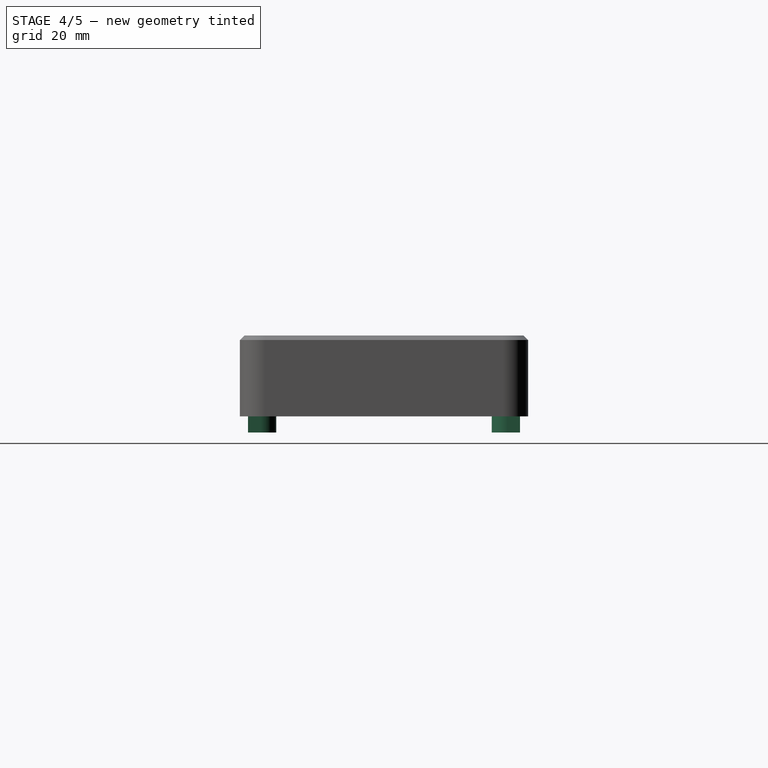
[diagram: stage 4 of 5 — right view after this stage's code; geometry added in this stage tinted green]
FEATURE [PartDesign::Plane] DatumPlane
  AttachmentSupport = -> [Binder001]
  Length = 60
  MapMode = 45
  Placement = pos=(1.55e-14,-2.6e-15,11.4) rot=(0,0,1;1.5708rad)
  ResizeMode = 0
  Width = 60
FEATURE [Sketcher::SketchObject] Sketch004
  ArcFitTolerance = 1e-06
  AttachmentSupport = -> [DatumPlane]
  ExternalGeometry = -> [Thickness001,Binder001]
  FullyConstrained = true
  MakeInternals = false
  MapMode = 5
  Placement = pos=(1.55e-14,-2.6e-15,11.4) rot=(0,0,1;1.5708rad)
  sketch-geometry (4):
    g0: ArcOfCircle CenterX=27.5 CenterY=-46.5 CenterZ=0 NormalX=0 NormalY=0 NormalZ=1 AngleXU=0 Radius=3.5 StartAngle=1.5708 EndAngle=4.71239
    g1: LineSegment StartX=27.5 StartY=-50 StartZ=0 EndX=30.3 EndY=-50 EndZ=0
    g2: LineSegment StartX=30.3 StartY=-50 StartZ=0 EndX=30.3 EndY=-43 EndZ=0
    g3: LineSegment StartX=30.3 StartY=-43 StartZ=0 EndX=27.5 EndY=-43 EndZ=0
  constraints (10):
    c: PointOnObject(g-4,g0)
    c: Coincident(g2,g1)
    c: Vertical(g2)
    c: Coincident(g3,g2)
    c: Horizontal(g1)
    c: Horizontal(g3)
    c: Tangent(g0,g3) = -1.5708
    c: Tangent(g0,g1) = -1.5708
    c: PointOnObject(g2,g-3)
    c: Coincident(g0,g-4)
FEATURE [PartDesign::Pad] Pad003
  BaseFeature = -> Thickness001
  Direction = (0,0,1)
  Length = 10
  Length2 = 10
  Profile = -> Sketch004
  ReferenceAxis = -> Sketch004 [N_Axis]
  Refine = true
  Suppressed = false
  Type = 3
  UpToFace = -> Thickness001 [Face27]
FEATURE [PartDesign::Mirrored] Mirrored
  BaseFeature = -> Pad003
  MirrorPlane = -> YZ_Plane001
  Originals = -> [Pad003]
  Refine = true
  Suppressed = false
  TransformMode = 0
FEATURE [PartDesign::Mirrored] Mirrored001
  BaseFeature = -> Mirrored
  MirrorPlane = -> XZ_Plane001
  Originals = -> [Mirrored]
  Refine = true
  Suppressed = false
  TransformMode = 1
FEATURE [Sketcher::SketchObject] Sketch005
  ArcFitTolerance = 1e-06
  AttachmentSupport = -> [Mirrored001]
  ExternalGeometry = -> [Mirrored001]
  FullyConstrained = true
  MakeInternals = false
  MapMode = 5
  Placement = pos=(-2.5e-15,-5.1e-15,11.4) rot=(1,0,0;3.14159rad)
  sketch-geometry (4):
    g0: Circle CenterX=-46.5 CenterY=27.5 CenterZ=0 NormalX=0 NormalY=0 NormalZ=1 AngleXU=0 Radius=2
    g1: Circle CenterX=46.5 CenterY=27.5 CenterZ=0 NormalX=0 NormalY=0 NormalZ=1 AngleXU=0 Radius=2
    g2: Circle CenterX=46.5 CenterY=-27.5 CenterZ=0 NormalX=0 NormalY=0 NormalZ=1 AngleXU=0 Radius=2
    g3: Circle CenterX=-46.5 CenterY=-27.5 CenterZ=0 NormalX=0 NormalY=0 NormalZ=1 AngleXU=0 Radius=2
  constraints (8):
    c: Coincident(g0,g-3)
    c: Coincident(g1,g-4)
    c: Coincident(g2,g-5)
    c: Coincident(g3,g-6)
    c: Equal(g0,g1)
    c: Equal(g1,g2)
    c: Equal(g2,g3)
    c: Diameter(g3) = 4
FEATURE [PartDesign::Pocket] Pocket001
  BaseFeature = -> Mirrored001
  Direction = (0,0,1)
  Length = 5
  Length2 = 5
  Profile = -> Sketch005
  ReferenceAxis = -> Sketch005 [N_Axis]
  Refine = true
  Suppressed = false
  Type = 0
FEATURE [Sketcher::SketchObject] Sketch006
  ArcFitTolerance = 1e-06
  AttachmentSupport = -> [Pocket001]
  ExternalGeometry = -> [Pocket001]
  FullyConstrained = true
  MakeInternals = false
  MapMode = 5
  Placement = pos=(0,0,16.4) rot=(1,0,0;3.14159rad)
  sketch-geometry (4):
    g0: Circle CenterX=-46.5 CenterY=27.5 CenterZ=0 NormalX=0 NormalY=0 NormalZ=1 AngleXU=0 Radius=1.75
    g1: Circle CenterX=-46.5 CenterY=-27.5 CenterZ=0 NormalX=0 NormalY=0 NormalZ=1 AngleXU=0 Radius=1.75
    g2: Circle CenterX=46.5 CenterY=27.5 CenterZ=0 NormalX=0 NormalY=0 NormalZ=1 AngleXU=0 Radius=1.75
    g3: Circle CenterX=46.5 CenterY=-27.5 CenterZ=0 NormalX=0 NormalY=0 NormalZ=1 AngleXU=0 Radius=1.75
  constraints (8):
    c: Coincident(g0,g-3)
    c: Coincident(g1,g-6)
    c: Coincident(g2,g-4)
    c: Coincident(g3,g-5)
    c: Equal(g0,g1)
    c: Equal(g1,g2)
    c: Equal(g2,g3)
    c: Diameter(g0) = 3.5
FEATURE [PartDesign::Pocket] Pocket002
  BaseFeature = -> Pocket001
  Direction = (0,0,1)
  Length = 6
  Length2 = 5
  Profile = -> Sketch006
  ReferenceAxis = -> Sketch006 [N_Axis]
  Refine = true
  Suppressed = false
  Type = 0
FEATURE [Sketcher::SketchObject] Sketch008
  ArcFitTolerance = 1e-06
  AttachmentSupport = -> [Pocket002]
  ExternalGeometry = -> [Pocket002]
  FullyConstrained = true
  MakeInternals = false
  MapMode = 5
  Placement = pos=(72.3,0,0) rot=(0.57735,-0.57735,-0.57735;2.0944rad)
  sketch-geometry (2):
    g0: LineSegment [constr] StartX=0 StartY=31.2 StartZ=0 EndX=0 EndY=15 EndZ=0
    g1: Circle CenterX=0 CenterY=22.7 CenterZ=0 NormalX=0 NormalY=0 NormalZ=1 AngleXU=0 Radius=5.6
  constraints (7):
    c: PointOnObject(g0,g-3)
    c: PointOnObject(g0,g-4)
    c: Vertical(g0)
    c: PointOnObject(g0,g-2)
    c: Diameter(g1) = 11.2
    c: PointOnObject(g1,g0)
    c: Distance(g1,g-3) = 8.5
FEATURE [PartDesign::Pocket] Pocket004  label="jack 6mm"
  BaseFeature = -> Pocket002
  Direction = (1,0,0)
  Length = 5
  Length2 = 5
  Profile = -> Sketch008
  ReferenceAxis = -> Sketch008 [N_Axis]
  Refine = true
  Suppressed = false
  Type = 0
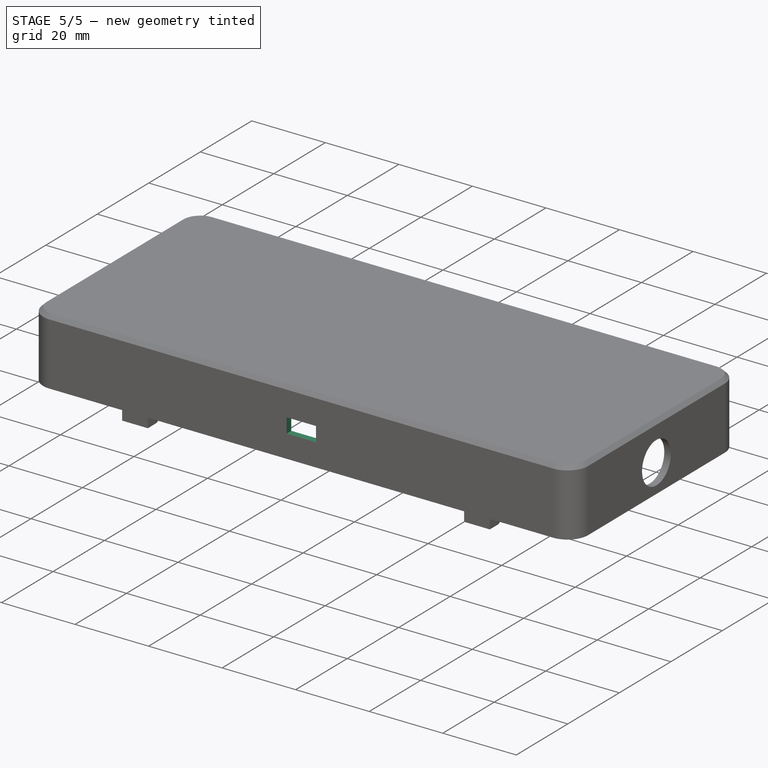
[diagram: stage 5 of 5 — iso view after this stage's code; geometry added in this stage tinted green]
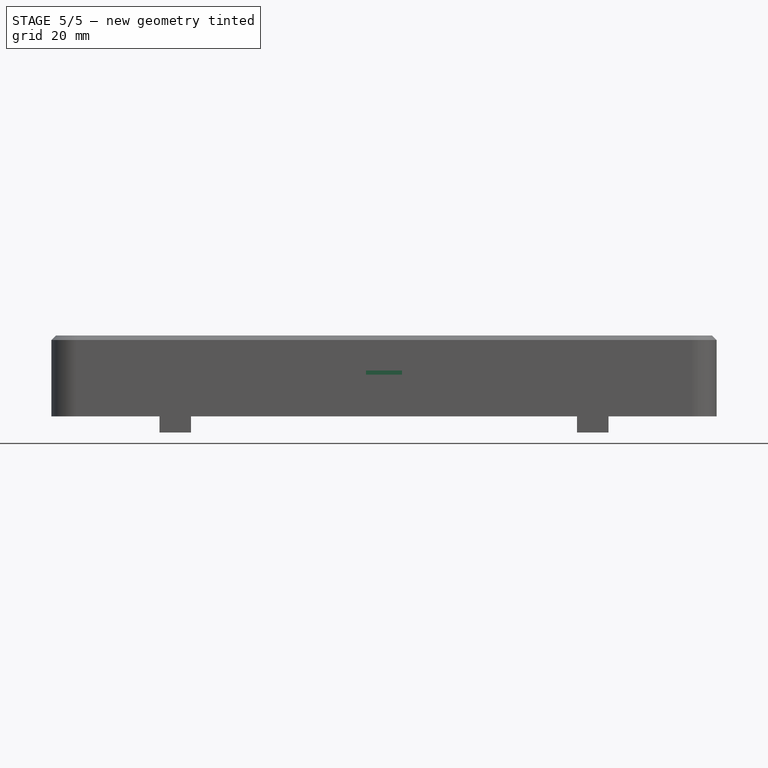
[diagram: stage 5 of 5 — front view after this stage's code; geometry added in this stage tinted green]
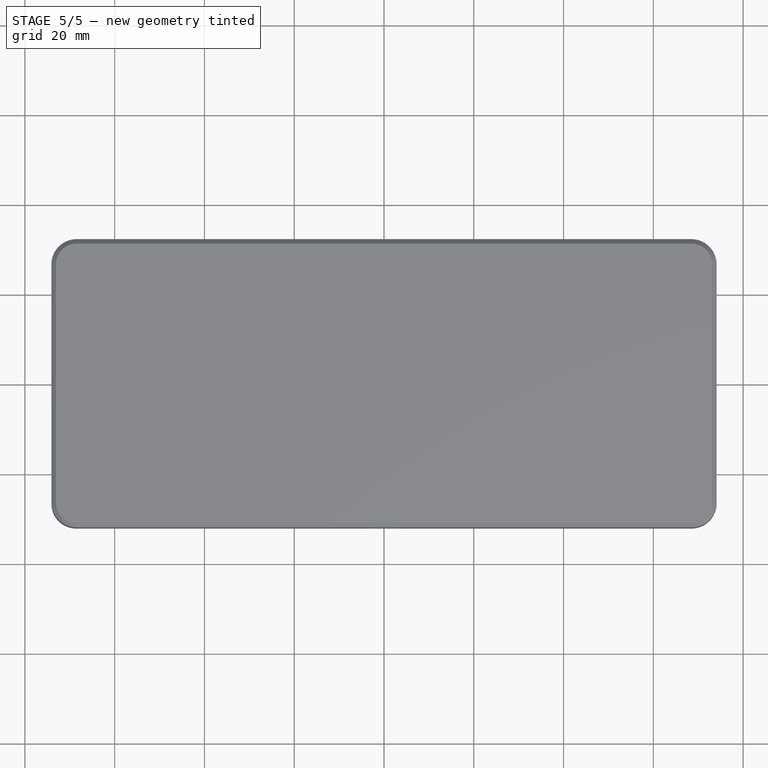
[diagram: stage 5 of 5 — top view after this stage's code; geometry added in this stage tinted green]
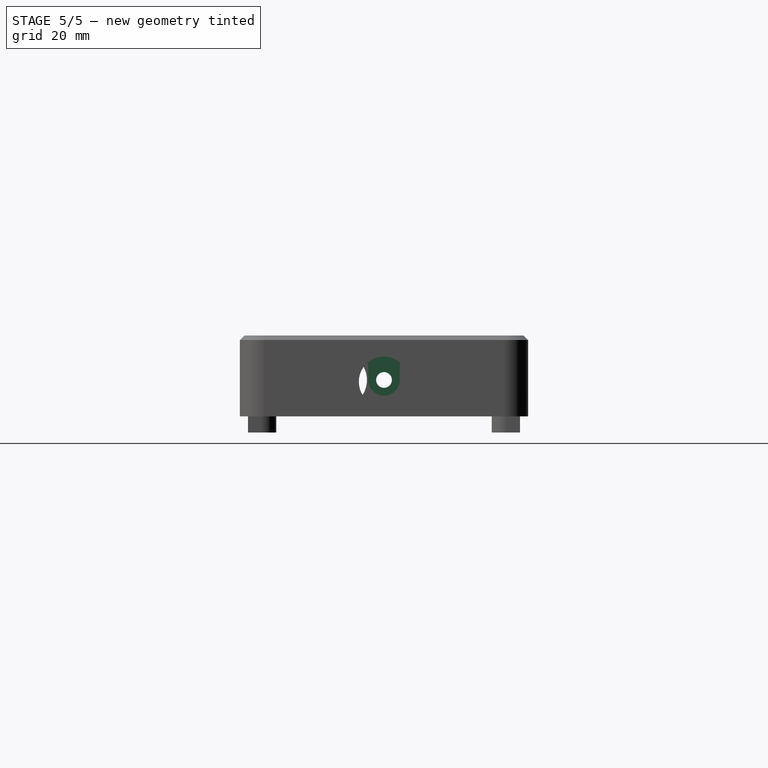
[diagram: stage 5 of 5 — right view after this stage's code; geometry added in this stage tinted green]
FEATURE [Sketcher::SketchObject] Sketch009
  ArcFitTolerance = 1e-06
  AttachmentSupport = -> [Pocket004]
  ExternalGeometry = -> [Pocket004]
  FullyConstrained = true
  MakeInternals = false
  MapMode = 5
  Placement = pos=(-72.3,0,0) rot=(0.57735,0.57735,0.57735;2.0944rad)
  sketch-geometry (3):
    g0: LineSegment [constr] StartX=-9.84e-14 StartY=31.2 StartZ=0 EndX=-9.84e-14 EndY=15 EndZ=0
    g1: Circle CenterX=-9.84e-14 CenterY=23.1 CenterZ=0 NormalX=0 NormalY=0 NormalZ=1 AngleXU=0 Radius=1.75
    g2: Circle CenterX=-10 CenterY=23.1 CenterZ=0 NormalX=0 NormalY=0 NormalZ=1 AngleXU=0 Radius=6.2
  constraints (7):
    c: Symmetric(g-3,g-3,g0)
    c: Symmetric(g-4,g-4,g0)
    c: Symmetric(g0,g0,g1)
    c: Horizontal(g2,g1)
    c: Diameter(g1) = 3.5
    c: Diameter(g2) = 12.4
    c: DistanceX(g2,g1) = 10
FEATURE [PartDesign::Pocket] Pocket005  label="buzzer"
  BaseFeature = -> Pocket004
  Direction = (-1,0,0)
  Length = 5
  Length2 = 5
  Profile = -> Sketch009
  ReferenceAxis = -> Sketch009 [N_Axis]
  Refine = true
  Suppressed = false
  Type = 0
FEATURE [Sketcher::SketchObject] Sketch010
  ArcFitTolerance = 1e-06
  AttachmentSupport = -> [Pocket005]
  ExternalGeometry = -> [Pocket005]
  FullyConstrained = true
  MakeInternals = false
  MapMode = 5
  Placement = pos=(-72.3,0,0) rot=(0.57735,0.57735,0.57735;2.0944rad)
  sketch-geometry (5):
    g0: Circle CenterX=-9.84e-14 CenterY=23.1 CenterZ=0 NormalX=0 NormalY=0 NormalZ=1 AngleXU=0 Radius=1.75
    g1: ArcOfCircle CenterX=-9.84e-14 CenterY=23.1 CenterZ=0 NormalX=0 NormalY=0 NormalZ=1 AngleXU=0 Radius=3.5 StartAngle=3.14159 EndAngle=6.28319
    g2: LineSegment StartX=-3.5 StartY=23.1 StartZ=0 EndX=-3.5 EndY=31.2 EndZ=0
    g3: LineSegment StartX=-3.5 StartY=31.2 StartZ=0 EndX=3.5 EndY=31.2 EndZ=0
    g4: LineSegment StartX=3.5 StartY=31.2 StartZ=0 EndX=3.5 EndY=23.1 EndZ=0
  constraints (12):
    c: Coincident(g0,g-3)
    c: Equal(g0,g-3)
    c: Coincident(g1,g0)
    c: Coincident(g3,g2)
    c: Horizontal(g3)
    c: Coincident(g4,g3)
    c: Vertical(g2)
    c: Vertical(g4)
    c: PointOnObject(g2,g-4)
    c: Diameter(g1) = 7
    c: Tangent(g1,g4) = 1.5708
    c: Tangent(g1,g2) = 1.5708
FEATURE [PartDesign::Pad] Pad004
  BaseFeature = -> Pocket005
  Direction = (1,0,0)
  Length = 7.8
  Length2 = 10
  Profile = -> Sketch010
  ReferenceAxis = -> Sketch010 [N_Axis]
  Refine = true
  Suppressed = false
  Type = 0
FEATURE [PartDesign::Chamfer] Chamfer004
  Angle = 45
  Base = -> Pad004 [Edge5]
  BaseFeature = -> Pad004
  ChamferType = 0
  FlipDirection = false
  Refine = true
  Size = 1.5
  Size2 = 1
  SupportTransform = false
  Suppressed = false
  UseAllEdges = false
FEATURE [PartDesign::Body] Body  label="vrchni"
  AllowCompound = false
  Group = -> [Sketch,Pad,Fillet,Thickness,Chamfer,Sketch001,Pocket,Chamfer001,Fillet001,Chamfer002,Sketch002,Pad001,Sketch007,Pocket003,Sketch011,Pocket006,ShapeString,Pocket007,ShapeString001,Pocket008,Sketch012,Pad005]
  Origin = -> Origin
  Tip = -> Pad005
FEATURE [Sketcher::SketchObject] Sketch013
  ArcFitTolerance = 1e-06
  AttachmentSupport = -> [Chamfer004]
  ExternalGeometry = -> [Chamfer004]
  FullyConstrained = true
  MakeInternals = false
  MapMode = 5
  Placement = pos=(0,-30.3,0) rot=(0,0.707107,0.707107;3.14159rad)
  sketch-geometry (5):
    g0: LineSegment StartX=-4 StartY=25.2 StartZ=0 EndX=-4 EndY=21.2 EndZ=0
    g1: LineSegment StartX=-4 StartY=21.2 StartZ=0 EndX=4 EndY=21.2 EndZ=0
    g2: LineSegment StartX=4 StartY=21.2 StartZ=0 EndX=4 EndY=25.2 EndZ=0
    g3: LineSegment StartX=4 StartY=25.2 StartZ=0 EndX=-4 EndY=25.2 EndZ=0
    g4: GeomPoint [constr] X=0 Y=23.2 Z=0
  constraints (13):
    c: Coincident(g0,g1)
    c: Coincident(g1,g2)
    c: Coincident(g2,g3)
    c: Coincident(g3,g0)
    c: Vertical(g0)
    c: Vertical(g2)
    c: Horizontal(g1)
    c: Horizontal(g3)
    c: Symmetric(g2,g0,g4)
    c: PointOnObject(g4,g-2)
    c: Distance(g1,g1) = 8
    c: DistanceY(g2,g2) = 4
    c: Distance(g3,g-3) = 6
FEATURE [PartDesign::Pocket] Pocket009
  BaseFeature = -> Chamfer004
  Direction = (0,-1,2e-16)
  Length = 5
  Length2 = 5
  Profile = -> Sketch013
  ReferenceAxis = -> Sketch013 [N_Axis]
  Suppressed = false
  Type = 0
FEATURE [Sketcher::SketchObject] Sketch014
  ArcFitTolerance = 1e-06
  AttachmentSupport = -> [Pocket009]
  ExternalGeometry = -> [Pocket009]
  FullyConstrained = true
  MakeInternals = false
  MapMode = 5
  Placement = pos=(0,0,31.2) rot=(1,0,0;3.14159rad)
  sketch-geometry (9):
    g0: LineSegment StartX=-9 StartY=30.3 StartZ=0 EndX=-9 EndY=-13.2 EndZ=0
    g1: LineSegment StartX=-9 StartY=-13.2 StartZ=0 EndX=9 EndY=-13.2 EndZ=0
    g2: LineSegment StartX=9 StartY=-13.2 StartZ=0 EndX=9 EndY=30.3 EndZ=0
    g3: LineSegment StartX=9 StartY=30.3 StartZ=0 EndX=11 EndY=30.3 EndZ=0
    g4: LineSegment StartX=11 StartY=30.3 StartZ=0 EndX=11 EndY=-15.2 EndZ=0
    g5: LineSegment StartX=11 StartY=-15.2 StartZ=0 EndX=-11 EndY=-15.2 EndZ=0
    g6: LineSegment StartX=-11 StartY=-15.2 StartZ=0 EndX=-11 EndY=30.3 EndZ=0
    g7: LineSegment StartX=-11 StartY=30.3 StartZ=0 EndX=-9 EndY=30.3 EndZ=0
    g8: LineSegment [constr] StartX=-9 StartY=-13.2 StartZ=0 EndX=-9 EndY=-15.2 EndZ=0
  constraints (26):
    c: Vertical(g0)
    c: Coincident(g0,g1)
    c: Coincident(g1,g2)
    c: Coincident(g2,g3)
    c: Coincident(g3,g4)
    c: Vertical(g4)
    c: Coincident(g4,g5)
    c: Horizontal(g5)
    c: Coincident(g5,g6)
    c: Vertical(g6)
    c: Coincident(g6,g7)
    c: Horizontal(g1)
    c: Vertical(g2)
    c: Horizontal(g3)
    c: Horizontal(g7)
    c: Equal(g7,g3)
    c: Coincident(g7,g0)
    c: PointOnObject(g8,g5)
    c: Vertical(g8)
    c: Equal(g7,g8)
    c: Symmetric(g0,g2,g-2)
    c: Horizontal(g0,g-3)
    c: Coincident(g8,g0)
    c: Distance(g7,g7) = 2
    c: DistanceY(g2,g2) = 43.5
    c: Distance(g2,g0) = 18
FEATURE [PartDesign::Pad] Pad006
  BaseFeature = -> Pocket009
  Direction = (0,0,-1)
  Length = 4.4
  Length2 = 10
  Profile = -> Sketch014
  ReferenceAxis = -> Sketch014 [N_Axis]
  Suppressed = false
  Type = 0
FEATURE [Sketcher::SketchObject] Sketch015
  ArcFitTolerance = 1e-06
  AttachmentSupport = -> [Pad006]
  ExternalGeometry = -> [Pad006]
  FullyConstrained = true
  MakeInternals = false
  MapMode = 5
  Placement = pos=(0,0,26.8) rot=(1,0,0;3.14159rad)
  sketch-geometry (4):
    g0: LineSegment StartX=-5 StartY=-13.2 StartZ=0 EndX=-5 EndY=-15.2 EndZ=0
    g1: LineSegment StartX=-5 StartY=-15.2 StartZ=0 EndX=5 EndY=-15.2 EndZ=0
    g2: LineSegment StartX=5 StartY=-15.2 StartZ=0 EndX=5 EndY=-13.2 EndZ=0
    g3: LineSegment StartX=5 StartY=-13.2 StartZ=0 EndX=-5 EndY=-13.2 EndZ=0
  constraints (11):
    c: Coincident(g0,g1)
    c: Coincident(g1,g2)
    c: Coincident(g2,g3)
    c: Coincident(g3,g0)
    c: Vertical(g0)
    c: Vertical(g2)
    c: Horizontal(g1)
    c: PointOnObject(g0,g-3)
    c: PointOnObject(g1,g-4)
    c: Symmetric(g0,g2,g-2)
    c: DistanceX(g1,g1) = 10
FEATURE [PartDesign::Pad] Pad007
  BaseFeature = -> Pad006
  Direction = (0,0,-1)
  Length = 2.5
  Length2 = 10
  Profile = -> Sketch015
  ReferenceAxis = -> Sketch015 [N_Axis]
  Suppressed = false
  Type = 0
FEATURE [PartDesign::Body] Body001  label="spodni"
  AllowCompound = false
  Group = -> [Binder001,Binder,Binder002,Sketch003,Pad002,Chamfer003,Thickness001,DatumPlane,Sketch004,Pad003,Mirrored,Mirrored001,Sketch005,Pocket001,Sketch006,Pocket002,Sketch008,Pocket004,Sketch009,Pocket005,Sketch010,Pad004,Chamfer004,Sketch013,Pocket009,Sketch014,Pad006,Sketch015,Pad007]
  Origin = -> Origin001
  Tip = -> Pad007
note: 2 file-system paths scrubbed to <path> (originals preserved in the JSON sidecar)
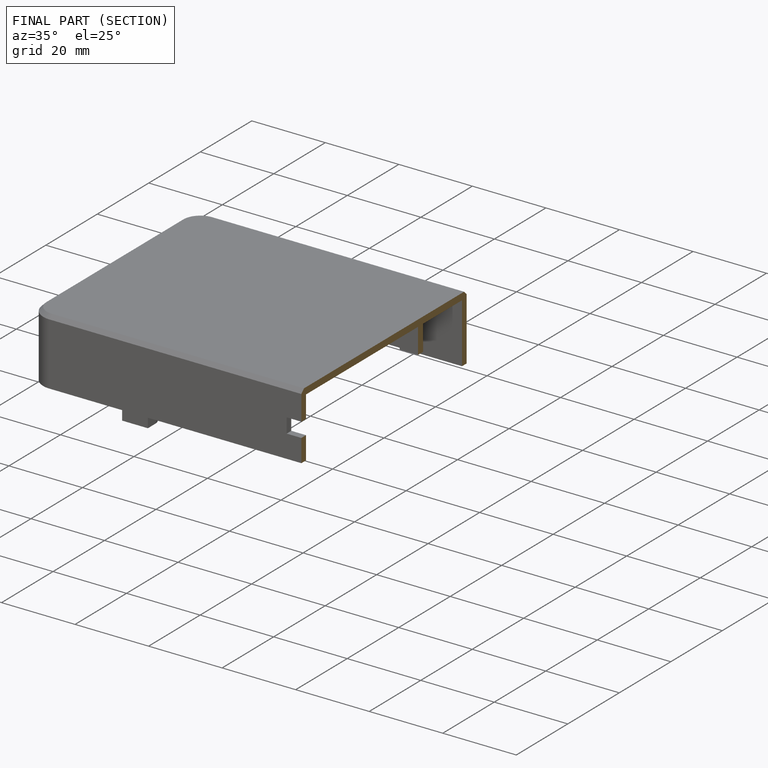
[diagram: finished part — half-section view (interior)]
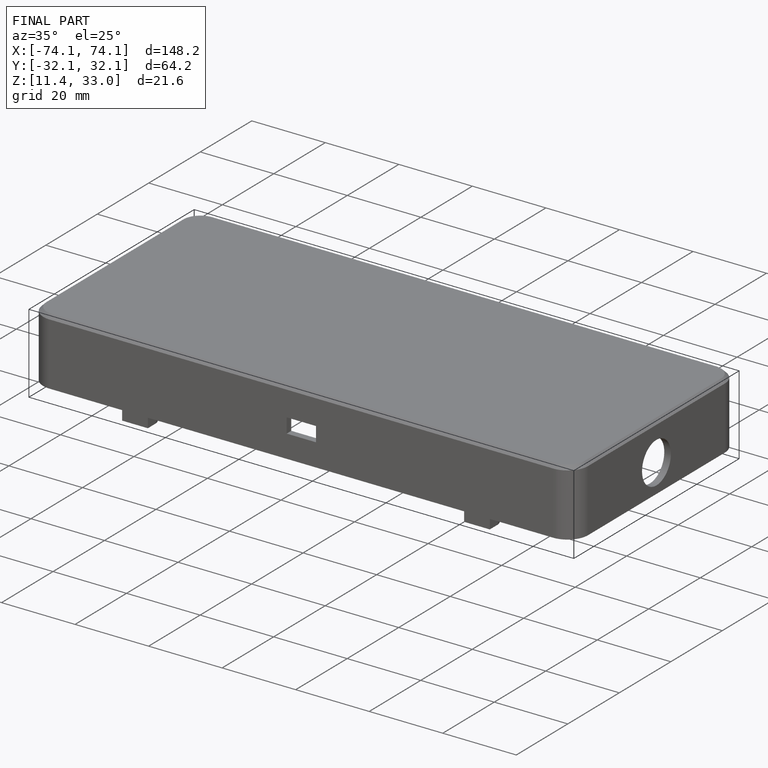
[diagram: finished part — iso view with bounding-box wireframe]
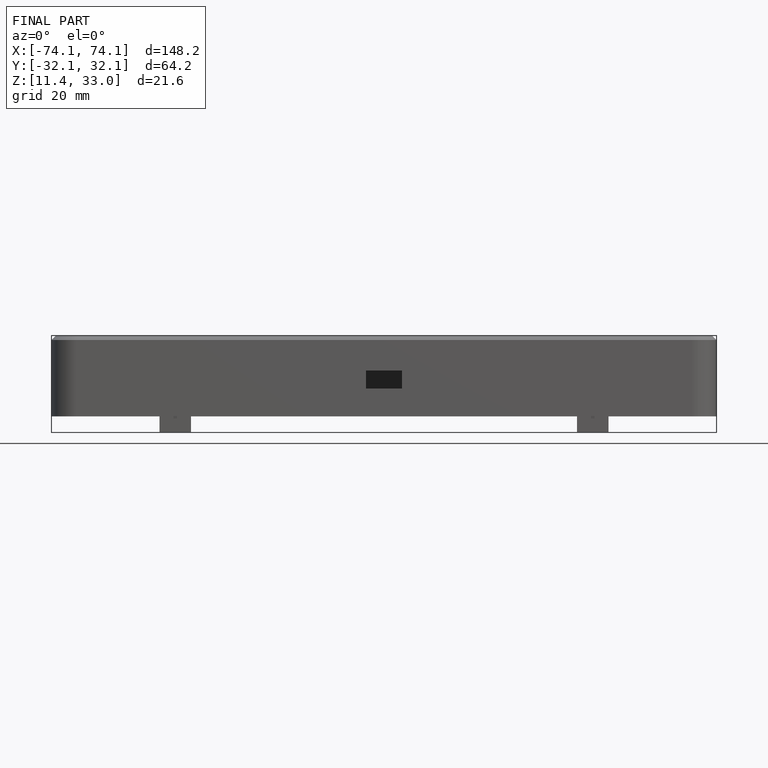
[diagram: finished part — front view with bounding-box wireframe]
